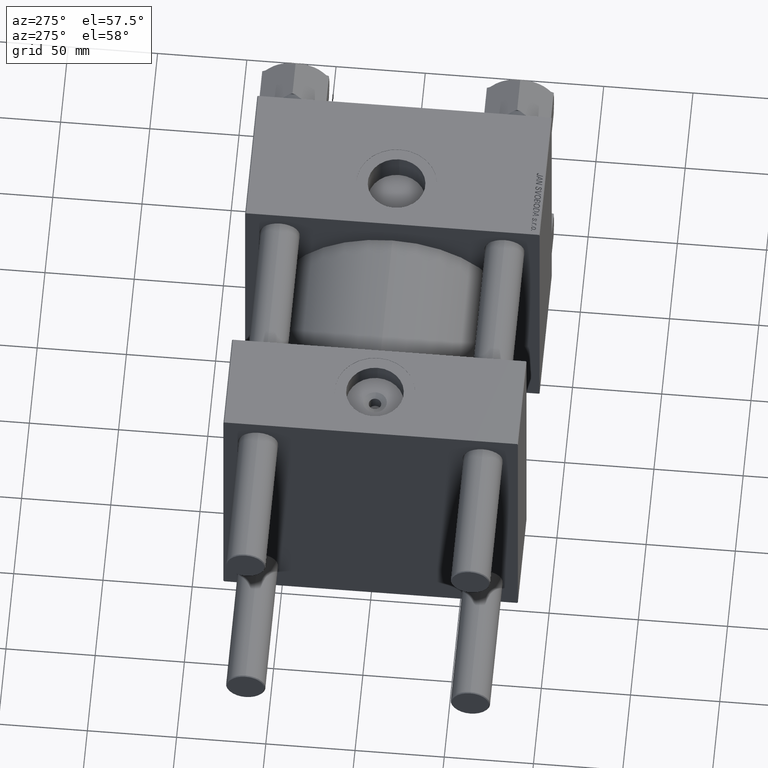
[diagram: clean part render]
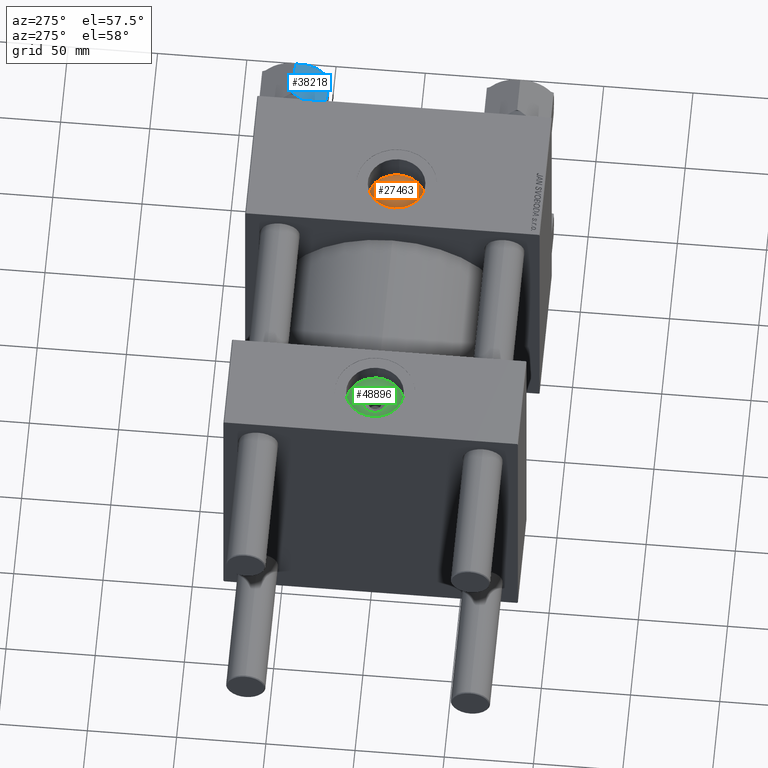
[diagram: same view with three faces highlighted in distinct colors, each labeled with its STEP entity id]
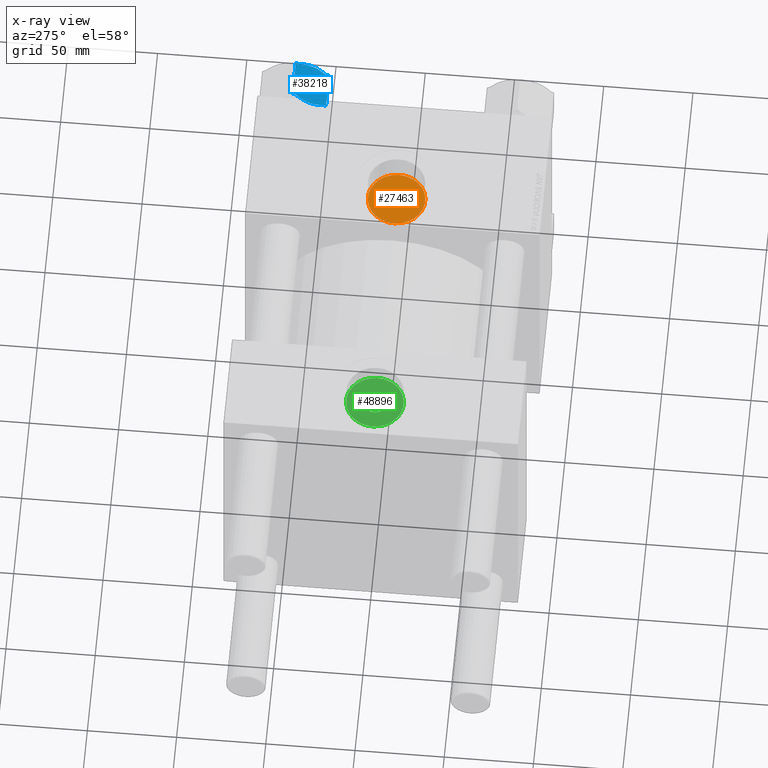
[diagram: x-ray of the same camera — body ghosted, the three highlighted faces saturated]
A machine part, auxiliary view with three faces highlighted in distinct colors.
The next image is the same camera in x-ray (body ghosted, the three faces saturated) — at least one of them is partly hidden behind the body in this view.
Their STEP definitions:

[orange] entity #27463 — the highlighted planar face has unit normal (0, 0, 1).
#6319 = CARTESIAN_POINT ( 'NONE',  ( 165.9999999999999716, -1.387778780781445676E-14, 66.09999999999998010 ) ) ;
#7274 = VERTEX_POINT ( 'NONE', #36326 ) ;
#8191 = EDGE_CURVE ( 'NONE', #9681, #7274, #14171, .T. ) ;
#9681 = VERTEX_POINT ( 'NONE', #36666 ) ;
#11126 = DIRECTION ( 'NONE',  ( 0.000000000000000000, 0.000000000000000000, 1.000000000000000000 ) ) ;
#14171 = CIRCLE ( 'NONE', #42601, 16.11999999999999389 ) ;
#14191 = DIRECTION ( 'NONE',  ( 1.000000000000000000, 0.000000000000000000, 0.000000000000000000 ) ) ;
#14882 = CARTESIAN_POINT ( 'NONE',  ( 165.9999999999999716, -1.387778780781445676E-14, 66.09999999999998010 ) ) ;
#26065 = DIRECTION ( 'NONE',  ( 1.000000000000000000, 0.000000000000000000, 0.000000000000000000 ) ) ;
#27463 = ADVANCED_FACE ( 'NONE', ( #41225 ), #33585, .T. ) ;
#28069 = AXIS2_PLACEMENT_3D ( 'NONE', #6319, #11126, #14191 ) ;
#29520 = DIRECTION ( 'NONE',  ( 0.000000000000000000, 0.000000000000000000, 1.000000000000000000 ) ) ;
#32180 = EDGE_LOOP ( 'NONE', ( #34241, #40187 ) ) ;
#33585 = PLANE ( 'NONE',  #36742 ) ;
#34241 = ORIENTED_EDGE ( 'NONE', *, *, #35402, .T. ) ;
#35402 = EDGE_CURVE ( 'NONE', #7274, #9681, #38603, .T. ) ;
#36326 = CARTESIAN_POINT ( 'NONE',  ( 149.8799999999999955, -1.387778780781445676E-14, 66.09999999999998010 ) ) ;
#36666 = CARTESIAN_POINT ( 'NONE',  ( 182.1199999999999761, -1.190365716758892667E-14, 66.09999999999998010 ) ) ;
#36742 = AXIS2_PLACEMENT_3D ( 'NONE', #45056, #29520, #40980 ) ;
#38603 = CIRCLE ( 'NONE', #28069, 16.11999999999999389 ) ;
#40187 = ORIENTED_EDGE ( 'NONE', *, *, #8191, .T. ) ;
#40980 = DIRECTION ( 'NONE',  ( 1.000000000000000000, 0.000000000000000000, -0.000000000000000000 ) ) ;
#41225 = FACE_OUTER_BOUND ( 'NONE', #32180, .T. ) ;
#42101 = DIRECTION ( 'NONE',  ( 0.000000000000000000, 0.000000000000000000, 1.000000000000000000 ) ) ;
#42601 = AXIS2_PLACEMENT_3D ( 'NONE', #14882, #42101, #26065 ) ;
#45056 = CARTESIAN_POINT ( 'NONE',  ( 165.9999999999999716, -1.387778780781445676E-14, 66.09999999999998010 ) ) ;

[blue] entity #38218 — the highlighted planar face has unit normal (-0, 0.5, -0.866).
#224 = B_SPLINE_CURVE_WITH_KNOTS ( 'NONE', 3,
 ( #47515, #40403, #12422, #16752, #17015, #44224, #28695, #24360, #5563, #13187 ),
 .UNSPECIFIED., .F., .F.,
 ( 4, 2, 2, 2, 4 ),
 ( 5.007809737505621918E-07, 0.004555175037830372364, 0.006832512166258683690, 0.007971180730472843257, 0.009109849294687001955 ),
 .UNSPECIFIED. ) ;
#2339 = ORIENTED_EDGE ( 'NONE', *, *, #8817, .F. ) ;
#2538 = CARTESIAN_POINT ( 'NONE',  ( -15.25296234352184044, 11.02803271472446767, -0.09483449834990487215 ) ) ;
#3404 = ORIENTED_EDGE ( 'NONE', *, *, #48677, .F. ) ;
#3525 = CARTESIAN_POINT ( 'NONE',  ( -15.82895367481209448, 10.03038646421051361, -0.01197337667083733966 ) ) ;
#4087 = CARTESIAN_POINT ( 'NONE',  ( -21.62000000000000099, -1.258445848729200031E-15, -22.00000000000000000 ) ) ;
#4182 = CARTESIAN_POINT ( 'NONE',  ( -21.62000000000000099, -1.258445848729200031E-15, -2.000000000000001776 ) ) ;
#4338 = CARTESIAN_POINT ( 'NONE',  ( -16.21499999999999986, 9.361734614909769547, 0.000000000000000000 ) ) ;
#4842 = DIRECTION ( 'NONE',  ( 0.4999999999999993894, 0.8660254037844389297, 0.000000000000000000 ) ) ;
#4993 = CARTESIAN_POINT ( 'NONE',  ( -11.77388873931091950, 17.05396496048956934, -2.000000000000000000 ) ) ;
#5428 = VERTEX_POINT ( 'NONE', #17183 ) ;
#5563 = CARTESIAN_POINT ( 'NONE',  ( -16.40715167818696685, 9.028918145530337114, -23.99999999999998579 ) ) ;
#6891 = VECTOR ( 'NONE', #4842, 1000.000000000000114 ) ;
#6979 = CARTESIAN_POINT ( 'NONE',  ( -10.81000000000001471, 18.72346922981956752, -22.00000000000000000 ) ) ;
#7204 = EDGE_CURVE ( 'NONE', #14739, #26982, #224, .T. ) ;
#7254 = CARTESIAN_POINT ( 'NONE',  ( -13.21634051119551501, 14.55556520411769306, -23.07491496110389662 ) ) ;
#7501 = LINE ( 'NONE', #30897, #15393 ) ;
#7808 = VECTOR ( 'NONE', #13062, 1000.000000000000000 ) ;
#8004 = DIRECTION ( 'NONE',  ( -0.4999999999999993894, -0.8660254037844389297, 0.000000000000000000 ) ) ;
#8817 = EDGE_CURVE ( 'NONE', #40637, #14739, #44562, .T. ) ;
#9198 = CARTESIAN_POINT ( 'NONE',  ( -21.62000000000000099, -1.258445848729200031E-15, -2.000000000000001776 ) ) ;
#11077 = CARTESIAN_POINT ( 'NONE',  ( -13.58342913161268228, 13.91974906267477685, -23.28765129395943134 ) ) ;
#11080 = CARTESIAN_POINT ( 'NONE',  ( -18.84657086838733164, 4.803720167144772013, -0.7123487060405609972 ) ) ;
#11571 = CARTESIAN_POINT ( 'NONE',  ( -17.73599980468855009, 6.727285674886891442, -0.1908188403548049805 ) ) ;
#11908 = CARTESIAN_POINT ( 'NONE',  ( -16.21499999999999986, 9.361734614909769547, 0.000000000000000000 ) ) ;
#12332 = CARTESIAN_POINT ( 'NONE',  ( -11.77388873931091950, 17.05396496048956934, -22.00000000000000000 ) ) ;
#12422 = CARTESIAN_POINT ( 'NONE',  ( -19.22845374672206376, 4.142279619328379958, -23.10638014572221266 ) ) ;
#13062 = DIRECTION ( 'NONE',  ( -0.000000000000000000, -0.000000000000000000, 1.000000000000000000 ) ) ;
#13187 = CARTESIAN_POINT ( 'NONE',  ( -16.21499999999999986, 9.361734614909769547, -24.00000000000000000 ) ) ;
#13525 = DIRECTION ( 'NONE',  ( 0.4999999999999993894, 0.8660254037844389297, 0.000000000000000000 ) ) ;
#14004 = B_SPLINE_CURVE_WITH_KNOTS ( 'NONE', 3,
 ( #34712, #50219, #23248, #11077, #7254, #46165, #15390, #38265 ),
 .UNSPECIFIED., .F., .F.,
 ( 4, 2, 2, 4 ),
 ( 0.009109849294687001955, 0.01366157320126706355, 0.01593743515455708915, 0.01821329710784711994 ),
 .UNSPECIFIED. ) ;
#14167 = PLANE ( 'NONE',  #38718 ) ;
#14739 = VERTEX_POINT ( 'NONE', #42177 ) ;
#14883 = CARTESIAN_POINT ( 'NONE',  ( -16.21499999999999986, 9.361734614909769547, 0.000000000000000000 ) ) ;
#15390 = CARTESIAN_POINT ( 'NONE',  ( -12.12795923008836674, 16.44069688100218940, -22.30351413196914834 ) ) ;
#15393 = VECTOR ( 'NONE', #8004, 1000.000000000000114 ) ;
#15638 = CARTESIAN_POINT ( 'NONE',  ( -20.30204076991166673, 2.282772348817364350, -1.696485868030862099 ) ) ;
#15787 = LINE ( 'NONE', #4087, #6891 ) ;
#15886 = CARTESIAN_POINT ( 'NONE',  ( -16.21499999999999986, 9.361734614909769547, -24.00000000000000000 ) ) ;
#16329 = EDGE_CURVE ( 'NONE', #40637, #46785, #42577, .T. ) ;
#16752 = CARTESIAN_POINT ( 'NONE',  ( -18.12021770021052447, 6.061800758665620847, -23.62969313679642624 ) ) ;
#17015 = CARTESIAN_POINT ( 'NONE',  ( -17.74616263960891160, 6.709683128455897538, -23.76617792281660257 ) ) ;
#17183 = CARTESIAN_POINT ( 'NONE',  ( -10.81000000000001471, 18.72346922981956752, -2.000000000000001776 ) ) ;
#17891 = ORIENTED_EDGE ( 'NONE', *, *, #7204, .F. ) ;
#19378 = VECTOR ( 'NONE', #34834, 1000.000000000000000 ) ;
#19645 = ORIENTED_EDGE ( 'NONE', *, *, #24309, .F. ) ;
#19868 = VECTOR ( 'NONE', #13525, 1000.000000000000114 ) ;
#21856 = CARTESIAN_POINT ( 'NONE',  ( -14.30978229978948590, 12.66166847115393423, -0.3703068632035738106 ) ) ;
#22034 = EDGE_CURVE ( 'NONE', #30681, #33263, #33238, .T. ) ;
#22095 = CARTESIAN_POINT ( 'NONE',  ( -15.44401067499413394, 10.69712729791319106, -0.05945867712357934265 ) ) ;
#23248 = CARTESIAN_POINT ( 'NONE',  ( -14.69400019531147983, 11.99618355493266186, -23.80918115964519188 ) ) ;
#23252 = CARTESIAN_POINT ( 'NONE',  ( -19.94246781890514697, 2.905570968988132829, -1.417879168323227246 ) ) ;
#24309 = EDGE_CURVE ( 'NONE', #33263, #47026, #30607, .T. ) ;
#24360 = CARTESIAN_POINT ( 'NONE',  ( -16.60104632518793366, 8.693082765609041473, -23.98802662332916213 ) ) ;
#25603 = DIRECTION ( 'NONE',  ( 0.4999999999999993894, 0.8660254037844389297, 0.000000000000000000 ) ) ;
#25664 = CARTESIAN_POINT ( 'NONE',  ( -13.20154625327795550, 14.58118961049117068, -0.8936198542777936682 ) ) ;
#26573 = CARTESIAN_POINT ( 'NONE',  ( -19.21365948880451313, 4.167904025701864690, -0.9250850388961038284 ) ) ;
#26982 = VERTEX_POINT ( 'NONE', #15886 ) ;
#27063 = CARTESIAN_POINT ( 'NONE',  ( -20.65611126068910863, 1.669504269329982415, -2.000000000000000000 ) ) ;
#27856 = CARTESIAN_POINT ( 'NONE',  ( -21.62000000000000099, -1.258445848729200031E-15, -22.00000000000000000 ) ) ;
#28498 = VERTEX_POINT ( 'NONE', #12332 ) ;
#28695 = CARTESIAN_POINT ( 'NONE',  ( -16.98598932500588177, 8.026341931906362248, -23.94054132287642034 ) ) ;
#30572 = CARTESIAN_POINT ( 'NONE',  ( -20.65611126068910863, 1.669504269329982415, -2.000000000000000000 ) ) ;
#30607 = B_SPLINE_CURVE_WITH_KNOTS ( 'NONE', 3,
 ( #14883, #45919, #11571, #11080, #26573, #23252, #15638, #27063 ),
 .UNSPECIFIED., .F., .F.,
 ( 4, 2, 2, 4 ),
 ( 0.009109849294686995017, 0.01366157320126705661, 0.01593743515455708221, 0.01821329710784710953 ),
 .UNSPECIFIED. ) ;
#30681 = VERTEX_POINT ( 'NONE', #4993 ) ;
#30897 = CARTESIAN_POINT ( 'NONE',  ( -21.62000000000000099, -1.258445848729200031E-15, -2.000000000000001776 ) ) ;
#33218 = EDGE_CURVE ( 'NONE', #28498, #42261, #15787, .T. ) ;
#33238 = B_SPLINE_CURVE_WITH_KNOTS ( 'NONE', 3,
 ( #41192, #48818, #25664, #21856, #37372, #2538, #22095, #3525, #46254, #11908 ),
 .UNSPECIFIED., .F., .F.,
 ( 4, 2, 2, 2, 4 ),
 ( 5.007809737490791430E-07, 0.004555175037830370630, 0.006832512166258681088, 0.007971180730472838052, 0.009109849294686995017 ),
 .UNSPECIFIED. ) ;
#33263 = VERTEX_POINT ( 'NONE', #4338 ) ;
#34712 = CARTESIAN_POINT ( 'NONE',  ( -16.21499999999999986, 9.361734614909769547, -24.00000000000000000 ) ) ;
#34834 = DIRECTION ( 'NONE',  ( -0.000000000000000000, -0.000000000000000000, 1.000000000000000000 ) ) ;
#36412 = LINE ( 'NONE', #9198, #45423 ) ;
#37310 = EDGE_CURVE ( 'NONE', #26982, #28498, #14004, .T. ) ;
#37372 = CARTESIAN_POINT ( 'NONE',  ( -14.68383736039112009, 12.01378610136365310, -0.2338220771834072786 ) ) ;
#38218 = ADVANCED_FACE ( 'NONE', ( #42123 ), #14167, .F. ) ;
#38265 = CARTESIAN_POINT ( 'NONE',  ( -11.77388873931091950, 17.05396496048956934, -22.00000000000000000 ) ) ;
#38605 = ORIENTED_EDGE ( 'NONE', *, *, #16329, .T. ) ;
#38718 = AXIS2_PLACEMENT_3D ( 'NONE', #41610, #48993, #25603 ) ;
#39757 = CARTESIAN_POINT ( 'NONE',  ( -21.62000000000000099, -1.258445848729200031E-15, -24.00000000000000000 ) ) ;
#40233 = CARTESIAN_POINT ( 'NONE',  ( -21.62000000000000099, -1.258445848729200031E-15, -22.00000000000000000 ) ) ;
#40403 = CARTESIAN_POINT ( 'NONE',  ( -19.94878361794604871, 2.894631684158908591, -22.60633105863622916 ) ) ;
#40637 = VERTEX_POINT ( 'NONE', #27856 ) ;
#41192 = CARTESIAN_POINT ( 'NONE',  ( -11.77388873931091950, 17.05396496048956934, -2.000000000000000000 ) ) ;
#41610 = CARTESIAN_POINT ( 'NONE',  ( -21.62000000000000099, -1.258445848729200031E-15, -24.00000000000000000 ) ) ;
#41969 = CARTESIAN_POINT ( 'NONE',  ( -10.81000000000001471, 18.72346922981956752, -24.00000000000000000 ) ) ;
#42123 = FACE_OUTER_BOUND ( 'NONE', #48641, .T. ) ;
#42177 = CARTESIAN_POINT ( 'NONE',  ( -20.65611126068910863, 1.669504269329982415, -22.00000000000000000 ) ) ;
#42261 = VERTEX_POINT ( 'NONE', #6979 ) ;
#42337 = ORIENTED_EDGE ( 'NONE', *, *, #37310, .F. ) ;
#42577 = LINE ( 'NONE', #39757, #7808 ) ;
#43539 = DIRECTION ( 'NONE',  ( -0.4999999999999993894, -0.8660254037844389297, 0.000000000000000000 ) ) ;
#44224 = CARTESIAN_POINT ( 'NONE',  ( -17.17703765647818059, 7.695436515095081198, -23.90516550165009235 ) ) ;
#44360 = ORIENTED_EDGE ( 'NONE', *, *, #47928, .F. ) ;
#44562 = LINE ( 'NONE', #40233, #19868 ) ;
#45423 = VECTOR ( 'NONE', #43539, 1000.000000000000114 ) ;
#45544 = LINE ( 'NONE', #41969, #19378 ) ;
#45791 = ORIENTED_EDGE ( 'NONE', *, *, #47350, .F. ) ;
#45919 = CARTESIAN_POINT ( 'NONE',  ( -16.98310883762008316, 8.031331082409144173, -1.192622389734056928E-14 ) ) ;
#46165 = CARTESIAN_POINT ( 'NONE',  ( -12.48753218109488117, 15.81789826083142714, -22.58212083167677875 ) ) ;
#46254 = CARTESIAN_POINT ( 'NONE',  ( -16.02284832181305063, 9.694551084289212639, -1.220743883582897649E-14 ) ) ;
#46395 = ORIENTED_EDGE ( 'NONE', *, *, #22034, .F. ) ;
#46785 = VERTEX_POINT ( 'NONE', #4182 ) ;
#46963 = ORIENTED_EDGE ( 'NONE', *, *, #33218, .F. ) ;
#47026 = VERTEX_POINT ( 'NONE', #30572 ) ;
#47350 = EDGE_CURVE ( 'NONE', #42261, #5428, #45544, .T. ) ;
#47515 = CARTESIAN_POINT ( 'NONE',  ( -20.65611126068910863, 1.669504269329982415, -22.00000000000000000 ) ) ;
#47928 = EDGE_CURVE ( 'NONE', #47026, #46785, #36412, .T. ) ;
#48641 = EDGE_LOOP ( 'NONE', ( #2339, #38605, #44360, #19645, #46395, #3404, #45791, #46963, #42337, #17891 ) ) ;
#48677 = EDGE_CURVE ( 'NONE', #5428, #30681, #7501, .T. ) ;
#48818 = CARTESIAN_POINT ( 'NONE',  ( -12.48121638205399186, 15.82883754566064383, -1.393668941363782388 ) ) ;
#48993 = DIRECTION ( 'NONE',  ( 0.8660254037844390407, -0.4999999999999994449, 0.000000000000000000 ) ) ;
#50219 = CARTESIAN_POINT ( 'NONE',  ( -15.44689116237994320, 10.69213814741041091, -23.99999999999998934 ) ) ;

[green] entity #48896 — the highlighted planar face has unit normal (0, 0, 1).
#611 = CIRCLE ( 'NONE', #19307, 6.640000000000037872 ) ;
#2161 = DIRECTION ( 'NONE',  ( -0.000000000000000000, -0.000000000000000000, -1.000000000000000000 ) ) ;
#5982 = VERTEX_POINT ( 'NONE', #39422 ) ;
#7256 = AXIS2_PLACEMENT_3D ( 'NONE', #21206, #29589, #48422 ) ;
#8547 = DIRECTION ( 'NONE',  ( 1.000000000000000000, 0.000000000000000000, 0.000000000000000000 ) ) ;
#9592 = AXIS2_PLACEMENT_3D ( 'NONE', #17102, #28004, #16843 ) ;
#11832 = CIRCLE ( 'NONE', #46749, 6.640000000000037872 ) ;
#15936 = DIRECTION ( 'NONE',  ( -0.000000000000000000, -0.000000000000000000, -1.000000000000000000 ) ) ;
#16843 = DIRECTION ( 'NONE',  ( 1.000000000000000000, 0.000000000000000000, 0.000000000000000000 ) ) ;
#17069 = EDGE_CURVE ( 'NONE', #36183, #22626, #39529, .T. ) ;
#17102 = CARTESIAN_POINT ( 'NONE',  ( 27.50000000000000000, -8.673617379884037050E-15, 71.70000000000001705 ) ) ;
#17905 = PLANE ( 'NONE',  #7256 ) ;
#19307 = AXIS2_PLACEMENT_3D ( 'NONE', #32198, #15936, #8547 ) ;
#20728 = ORIENTED_EDGE ( 'NONE', *, *, #35519, .T. ) ;
#21206 = CARTESIAN_POINT ( 'NONE',  ( 27.50000000000000000, -8.673617379884037050E-15, 71.70000000000001705 ) ) ;
#21567 = ORIENTED_EDGE ( 'NONE', *, *, #40618, .T. ) ;
#22626 = VERTEX_POINT ( 'NONE', #26432 ) ;
#24086 = AXIS2_PLACEMENT_3D ( 'NONE', #25534, #36493, #28337 ) ;
#25534 = CARTESIAN_POINT ( 'NONE',  ( 27.50000000000000000, -8.673617379884037050E-15, 71.70000000000001705 ) ) ;
#26432 = CARTESIAN_POINT ( 'NONE',  ( 11.37999999999999012, -6.699486739658503022E-15, 71.70000000000001705 ) ) ;
#26787 = EDGE_LOOP ( 'NONE', ( #29507, #39485 ) ) ;
#28004 = DIRECTION ( 'NONE',  ( 0.000000000000000000, 0.000000000000000000, 1.000000000000000000 ) ) ;
#28337 = DIRECTION ( 'NONE',  ( 1.000000000000000000, 0.000000000000000000, 0.000000000000000000 ) ) ;
#28603 = DIRECTION ( 'NONE',  ( 1.000000000000000000, 0.000000000000000000, 0.000000000000000000 ) ) ;
#29507 = ORIENTED_EDGE ( 'NONE', *, *, #17069, .T. ) ;
#29589 = DIRECTION ( 'NONE',  ( 0.000000000000000000, 0.000000000000000000, 1.000000000000000000 ) ) ;
#30788 = EDGE_LOOP ( 'NONE', ( #20728, #21567 ) ) ;
#32198 = CARTESIAN_POINT ( 'NONE',  ( 27.50000000000000000, -8.673617379884037050E-15, 71.70000000000001705 ) ) ;
#32691 = VERTEX_POINT ( 'NONE', #41791 ) ;
#33934 = CIRCLE ( 'NONE', #9592, 16.12000000000000455 ) ;
#35519 = EDGE_CURVE ( 'NONE', #5982, #32691, #11832, .T. ) ;
#36183 = VERTEX_POINT ( 'NONE', #43965 ) ;
#36493 = DIRECTION ( 'NONE',  ( 0.000000000000000000, 0.000000000000000000, 1.000000000000000000 ) ) ;
#36739 = CARTESIAN_POINT ( 'NONE',  ( 27.50000000000000000, -8.673617379884037050E-15, 71.70000000000001705 ) ) ;
#39422 = CARTESIAN_POINT ( 'NONE',  ( 34.14000000000002899, -8.673617379884037050E-15, 71.70000000000001705 ) ) ;
#39485 = ORIENTED_EDGE ( 'NONE', *, *, #44566, .T. ) ;
#39529 = CIRCLE ( 'NONE', #24086, 16.12000000000000455 ) ;
#40618 = EDGE_CURVE ( 'NONE', #32691, #5982, #611, .T. ) ;
#41791 = CARTESIAN_POINT ( 'NONE',  ( 20.85999999999996390, -7.860451905250189418E-15, 71.70000000000001705 ) ) ;
#43965 = CARTESIAN_POINT ( 'NONE',  ( 43.62000000000000455, -8.673617379884037050E-15, 71.70000000000001705 ) ) ;
#44566 = EDGE_CURVE ( 'NONE', #22626, #36183, #33934, .T. ) ;
#45368 = FACE_OUTER_BOUND ( 'NONE', #26787, .T. ) ;
#46749 = AXIS2_PLACEMENT_3D ( 'NONE', #36739, #2161, #28603 ) ;
#48422 = DIRECTION ( 'NONE',  ( 1.000000000000000000, 0.000000000000000000, -0.000000000000000000 ) ) ;
#48896 = ADVANCED_FACE ( 'NONE', ( #48913, #45368 ), #17905, .T. ) ;
#48913 = FACE_BOUND ( 'NONE', #30788, .T. ) ;